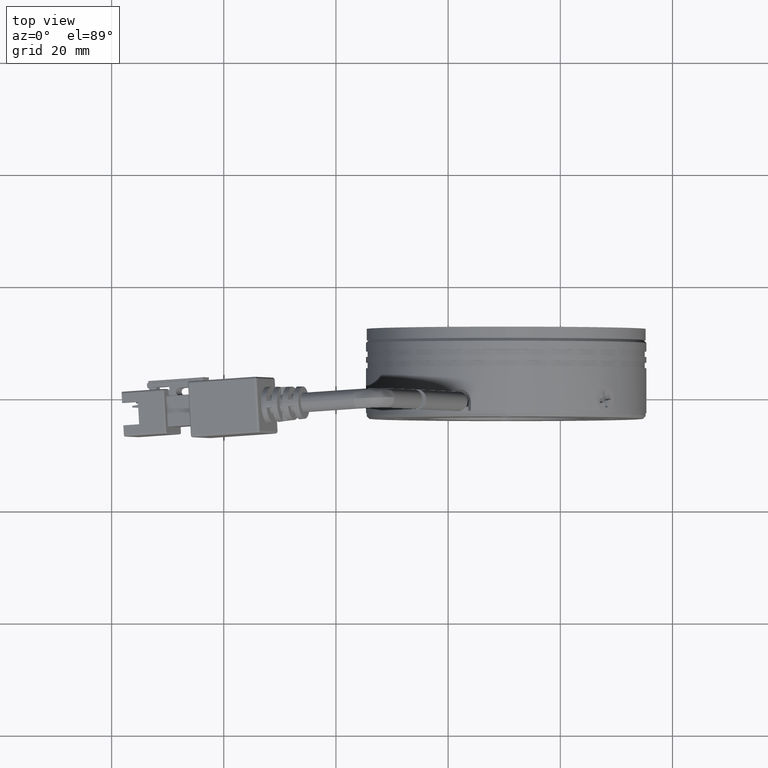
[diagram: clean part render]
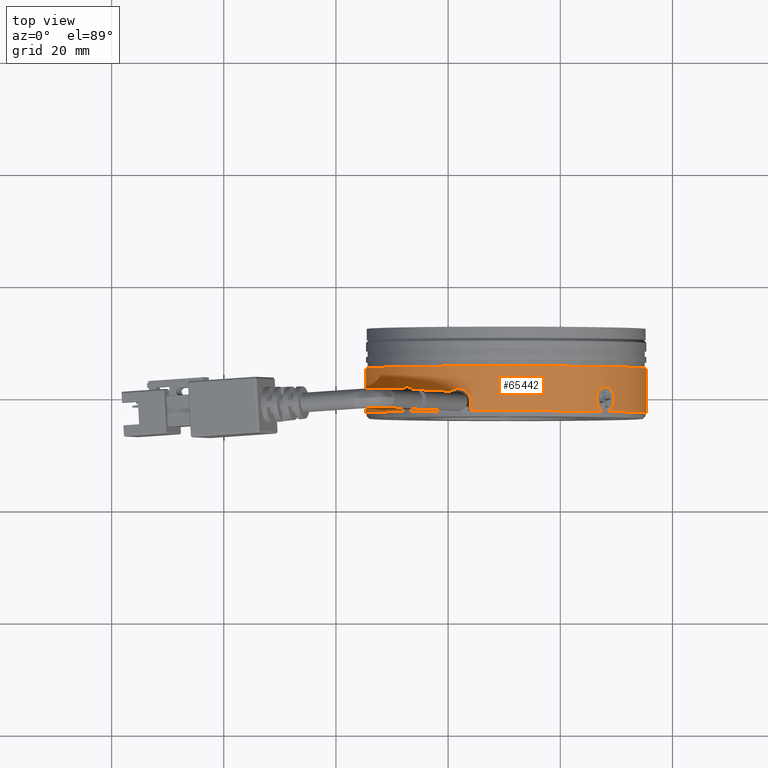
[diagram: same view with one face highlighted and labeled with its STEP entity id]
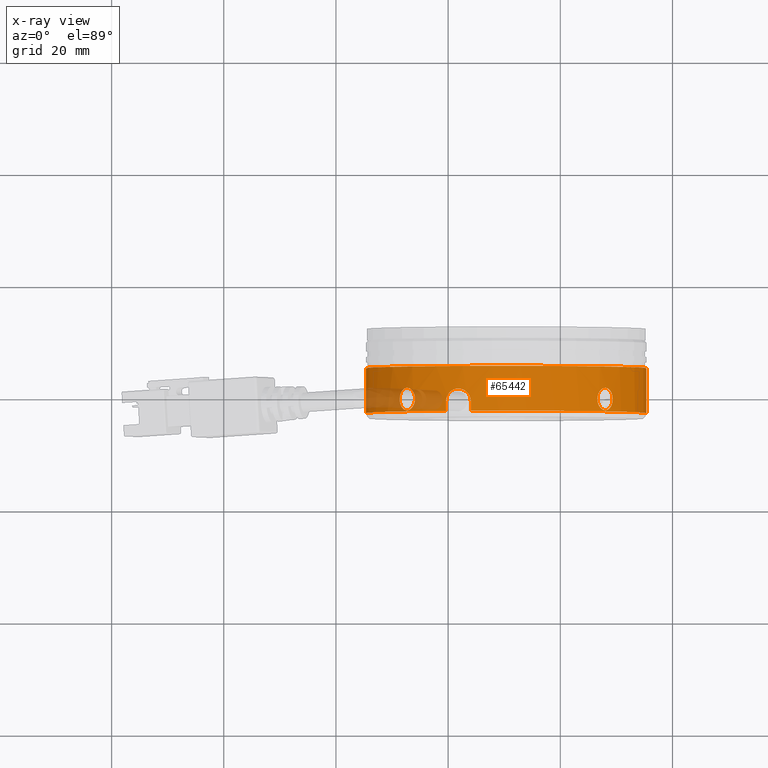
[diagram: x-ray of the same camera — body ghosted, the highlighted face saturated]
A machine part, top view. The second image highlights one B-rep face of the part: STEP entity #65442.
The next image is the same camera in x-ray: the body ghosted, the highlighted face saturated — about 10% of this face is hidden behind the body in this view.
In plain terms, the highlighted cylindrical surface (partial cylindrical patch) has radius 25 mm, axis along (0, 1, 0).
Its self-contained STEP definition (entity closure, byte-faithful):
#42 = CARTESIAN_POINT ( 'NONE',  ( 15.35145858196870000, 51.61934555154557100, 76.55310575562165800 ) ) ;
#93 = DIRECTION ( 'NONE',  ( 4.532197275894738700E-031, 1.000000000000000000, 4.532197275894724700E-031 ) ) ;
#332 = CARTESIAN_POINT ( 'NONE',  ( -28.59642743471406200, -0.1409245902011216900, 92.86194339805426500 ) ) ;
#588 = CARTESIAN_POINT ( 'NONE',  ( -27.14447318840049300, 1.335693571004913600, 94.41110358339697900 ) ) ;
#852 = CARTESIAN_POINT ( 'NONE',  ( -25.91199738532194600, -0.6509794129293314800, 95.53994330166905500 ) ) ;
#977 = CARTESIAN_POINT ( 'NONE',  ( 6.965283324171489100, 0.6568837906994411400, 95.23434073762597100 ) ) ;
#1251 = CARTESIAN_POINT ( 'NONE',  ( 8.848502027718085500, 0.9291898408952834500, 93.37185492042601700 ) ) ;
#2300 = CARTESIAN_POINT ( 'NONE',  ( 6.758631500942608600, -1.524775101214827200, 95.41594956077064200 ) ) ;
#2822 = CARTESIAN_POINT ( 'NONE',  ( 9.338296128016253300, -0.6509794129293314800, 92.81656172291212700 ) ) ;
#3008 = CARTESIAN_POINT ( 'NONE',  ( -28.63537896407886100, -0.6509794129293312600, 92.81656172291214100 ) ) ;
#3081 = CARTESIAN_POINT ( 'NONE',  ( 9.214315766031942800, -1.524736263700865200, 92.96026331398960000 ) ) ;
#4072 = CARTESIAN_POINT ( 'NONE',  ( -25.91199738532195300, -0.7805735488141403200, 95.53994330166906900 ) ) ;
#4314 = CARTESIAN_POINT ( 'NONE',  ( -26.05569897639939100, -1.524736263700857900, 95.41596293968476100 ) ) ;
#4442 = VERTEX_POINT ( 'NONE', #52152 ) ;
#4573 = CARTESIAN_POINT ( 'NONE',  ( -18.75858325760858500, 1.050240870311701900, 99.83462591058243200 ) ) ;
#4577 = CARTESIAN_POINT ( 'NONE',  ( -27.76535396371334500, -2.545989604186977400, 93.78084972891089400 ) ) ;
#4842 = CARTESIAN_POINT ( 'NONE',  ( -16.27051035937246900, 0.003059427249849956700, 100.6603035462586000 ) ) ;
#5021 = CARTESIAN_POINT ( 'NONE',  ( -9.648541418031307200, 5.149020587070663300, 76.55310575562155900 ) ) ;
#5525 = ORIENTED_EDGE ( 'NONE', *, *, #72470, .T. ) ;
#5764 = EDGE_CURVE ( 'NONE', #7518, #4442, #49584, .T. ) ;
#6189 = DIRECTION ( 'NONE',  ( 4.532197275894738700E-031, 1.000000000000000000, 4.532197275894724700E-031 ) ) ;
#6427 = CARTESIAN_POINT ( 'NONE',  ( -28.51139860209456200, 0.2227774378421978600, 92.96026331398960000 ) ) ;
#6539 = CARTESIAN_POINT ( 'NONE',  ( 6.614914549259319500, -0.5213852770445188700, 95.53994330166908400 ) ) ;
#6688 = CARTESIAN_POINT ( 'NONE',  ( -26.87628539132068500, 1.244030778328312000, 94.66991830130353900 ) ) ;
#7094 = CARTESIAN_POINT ( 'NONE',  ( 7.320383586893319400, 1.087999476491328800, 94.91366876036984500 ) ) ;
#7103 = DIRECTION ( 'NONE',  ( -1.000000000000000000, 0.0000000000000000000, -3.885780586188047100E-015 ) ) ;
#7347 = CARTESIAN_POINT ( 'NONE',  ( 9.032626388055046400, 0.6570970333311516600, 93.16700948888886600 ) ) ;
#7518 = VERTEX_POINT ( 'NONE', #3008 ) ;
#7649 = VERTEX_POINT ( 'NONE', #35176 ) ;
#8126 = CARTESIAN_POINT ( 'NONE',  ( 7.940127553003680600, -2.651139287803821400, 94.31979259184363700 ) ) ;
#8397 = CARTESIAN_POINT ( 'NONE',  ( 6.614914549259316900, -0.9101360977703431000, 95.53994330166905500 ) ) ;
#8486 = LINE ( 'NONE', #64119, #40833 ) ;
#8920 = CARTESIAN_POINT ( 'NONE',  ( 9.338296128016248000, -0.7805735488141403200, 92.81656172291215500 ) ) ;
#9166 = CARTESIAN_POINT ( 'NONE',  ( 9.085660720985240200, -1.856027097912917900, 93.10709014022293700 ) ) ;
#9431 = LINE ( 'NONE', #42, #25662 ) ;
#10462 = CARTESIAN_POINT ( 'NONE',  ( -26.20252580263276300, -1.856027097912910500, 95.28730789463804700 ) ) ;
#10479 = CARTESIAN_POINT ( 'NONE',  ( 9.338296128016253300, -0.6509794129293314800, 92.81656172291212700 ) ) ;
#10724 = CARTESIAN_POINT ( 'NONE',  ( -18.34128440230767500, 1.120616904101486600, 99.99364675955716600 ) ) ;
#10726 = CARTESIAN_POINT ( 'NONE',  ( -28.00420989254311300, -2.378719722795056900, 93.52603639698003200 ) ) ;
#10974 = CARTESIAN_POINT ( 'NONE',  ( -16.08118108248113000, -0.4077263361610373200, 100.7114336411842700 ) ) ;
#11148 = CARTESIAN_POINT ( 'NONE',  ( 15.35145858196870000, 5.149020587070663300, 76.55310575562165800 ) ) ;
#11164 = DIRECTION ( 'NONE',  ( -1.000000000000000000, 0.0000000000000000000, -3.885780586188047100E-015 ) ) ;
#12581 = CARTESIAN_POINT ( 'NONE',  ( -28.38274355704784900, 0.5540682720542554600, 93.10709014022293700 ) ) ;
#12825 = CARTESIAN_POINT ( 'NONE',  ( -26.62147205938985600, 1.076760896936394900, 94.90877423013333200 ) ) ;
#13209 = CARTESIAN_POINT ( 'NONE',  ( 7.665160637581143600, 1.282193668190542100, 94.58783949066597100 ) ) ;
#13470 = CARTESIAN_POINT ( 'NONE',  ( 9.175562825433148700, 0.3391833103337365500, 93.00478767127353300 ) ) ;
#14226 = CARTESIAN_POINT ( 'NONE',  ( 7.667421893273191500, -2.584987093674777600, 94.58566324289448300 ) ) ;
#14535 = AXIS2_PLACEMENT_3D ( 'NONE', #36548, #93, #42633 ) ;
#14965 = EDGE_CURVE ( 'NONE', #49677, #15829, #45184, .T. ) ;
#15037 = DIRECTION ( 'NONE',  ( 4.532197275894738700E-031, 1.000000000000000000, 4.532197275894724700E-031 ) ) ;
#15267 = CARTESIAN_POINT ( 'NONE',  ( 8.856913427648793300, -2.237232398198556000, 93.36319180609950800 ) ) ;
#15829 = VERTEX_POINT ( 'NONE', #16133 ) ;
#16133 = CARTESIAN_POINT ( 'NONE',  ( 15.35145858196870000, -2.850979412929329500, 76.55310575562165800 ) ) ;
#16141 = ORIENTED_EDGE ( 'NONE', *, *, #42124, .T. ) ;
#16303 = EDGE_CURVE ( 'NONE', #7649, #49278, #42878, .T. ) ;
#16545 = CARTESIAN_POINT ( 'NONE',  ( -20.29173430067620400, -0.5540434026008559400, 99.17440971861437000 ) ) ;
#16549 = CARTESIAN_POINT ( 'NONE',  ( -26.45862746850934500, -2.237232398198543100, 95.05856060130160800 ) ) ;
#16782 = CARTESIAN_POINT ( 'NONE',  ( -17.91374021181143000, 1.106276856407222500, 100.1477736889933000 ) ) ;
#16787 = CARTESIAN_POINT ( 'NONE',  ( -28.21164930598882500, -2.145817281903581000, 93.29881724834353900 ) ) ;
#17062 = CARTESIAN_POINT ( 'NONE',  ( -15.97689389699466200, -0.8457966733672733800, 100.7389056868494100 ) ) ;
#18162 = VECTOR ( 'NONE', #6189, 1000.000000000000000 ) ;
#18682 = CARTESIAN_POINT ( 'NONE',  ( -28.15399626371139900, 0.9352735723398858400, 93.36319180609952200 ) ) ;
#18956 = CARTESIAN_POINT ( 'NONE',  ( -26.39425291075332000, 0.8438584560449147200, 95.11621364357905900 ) ) ;
#19183 = EDGE_CURVE ( 'NONE', #52139, #58934, #8486, .T. ) ;
#19333 = CARTESIAN_POINT ( 'NONE',  ( 7.936814927013935000, 1.348857779509210000, 94.32307141475591500 ) ) ;
#19589 = CARTESIAN_POINT ( 'NONE',  ( 9.306442487443828100, -0.1345425812952199300, 92.85394572126210700 ) ) ;
#20175 = ORIENTED_EDGE ( 'NONE', *, *, #47386, .T. ) ;
#20362 = CARTESIAN_POINT ( 'NONE',  ( 7.406580212815377700, -2.442249956703199200, 94.83251727190439300 ) ) ;
#21403 = CARTESIAN_POINT ( 'NONE',  ( 8.471533339470154200, -2.544161312705560900, 93.77740728575859900 ) ) ;
#22643 = CARTESIAN_POINT ( 'NONE',  ( -20.14010499316402300, -0.1308073500188194600, 99.24519105075266600 ) ) ;
#22645 = CARTESIAN_POINT ( 'NONE',  ( -26.87284294816844000, -2.544161312705553800, 94.67318051312297200 ) ) ;
#22914 = CARTESIAN_POINT ( 'NONE',  ( -17.49708555863810500, 1.008227231547411900, 100.2895795053371900 ) ) ;
#22918 = CARTESIAN_POINT ( 'NONE',  ( -28.38176321851414500, -1.858048972361420600, 93.10819981746612900 ) ) ;
#22996 = CARTESIAN_POINT ( 'NONE',  ( -34.64854141803131400, 5.149020587070663300, 76.55310575562145900 ) ) ;
#23177 = CARTESIAN_POINT ( 'NONE',  ( -15.96129441888799900, -1.150979412929329800, 100.7429620914945600 ) ) ;
#24547 = CARTESIAN_POINT ( 'NONE',  ( -28.63537896407887100, -0.5213852770445199800, 92.81656172291215500 ) ) ;
#24831 = CARTESIAN_POINT ( 'NONE',  ( -27.76861617553276700, 1.242202486846887900, 93.77740728575861300 ) ) ;
#25089 = CARTESIAN_POINT ( 'NONE',  ( -26.20363547987593100, 0.5560901465027612300, 95.28632755610436800 ) ) ;
#25202 = CARTESIAN_POINT ( 'NONE',  ( 6.660296224401449200, -0.1409245902011164500, 95.50099177230428900 ) ) ;
#25473 = CARTESIAN_POINT ( 'NONE',  ( 8.209456409744200700, 1.335693571004924900, 94.04903752599065600 ) ) ;
#25662 = VECTOR ( 'NONE', #72847, 1000.000000000000000 ) ;
#25738 = CARTESIAN_POINT ( 'NONE',  ( 9.338296128016253300, -0.6509794129293314800, 92.81656172291212700 ) ) ;
#26498 = CARTESIAN_POINT ( 'NONE',  ( 7.170207746773218800, -2.231148666753943300, 95.05014920137088600 ) ) ;
#27581 = CARTESIAN_POINT ( 'NONE',  ( 8.210626502472502300, -2.637474032569500100, 94.04784842168308500 ) ) ;
#27756 = DIRECTION ( 'NONE',  ( 4.532197275894738700E-031, 1.000000000000000000, 4.532197275894724700E-031 ) ) ;
#28026 = CARTESIAN_POINT ( 'NONE',  ( -20.34741389369087700, -0.8486088543798363500, 99.14812900130269200 ) ) ;
#28812 = CARTESIAN_POINT ( 'NONE',  ( -19.91502856178217900, 0.2481173584790368200, 99.34799092269376800 ) ) ;
#28815 = CARTESIAN_POINT ( 'NONE',  ( -27.14328408409292200, -2.637474032569485000, 94.41227367612530900 ) ) ;
#29058 = CARTESIAN_POINT ( 'NONE',  ( -17.09941964930685300, 0.8274441838525955500, 100.4173145155026700 ) ) ;
#29063 = CARTESIAN_POINT ( 'NONE',  ( -28.51138522318043300, -1.524775101214820300, 92.96027867459541500 ) ) ;
#30899 = CARTESIAN_POINT ( 'NONE',  ( -27.50770933853512200, 1.335515206710823800, 94.04784842168309900 ) ) ;
#31163 = CARTESIAN_POINT ( 'NONE',  ( -26.05571433700524200, 0.2228162753561638300, 95.41594956077062800 ) ) ;
#31273 = B_SPLINE_CURVE_WITH_KNOTS ( 'NONE', 3,
 ( #2822, #8920, #33433, #75878, #39463, #3081, #45563, #9166, #51709, #15267, #57857, #21403, #63950, #27581, #70049, #8126, #50691, #14226, #56804, #20362, #62893, #26498, #69011, #32641, #75128, #38672, #2300, #44803, #8397, #50932 ),
 .UNSPECIFIED., .F., .F.,
 ( 4, 2, 2, 2, 2, 2, 2, 2, 2, 2, 2, 2, 2, 2, 4 ),
 ( 0.006161159450372530300, 0.006546184987753589000, 0.006931210525134646900, 0.007316236062515705600, 0.007701261599896763400, 0.008471312674658880800, 0.008856338212039923900, 0.009241363749420968700, 0.009626389286802011800, 0.01001141482418305500, 0.01039644036156409600, 0.01078146589894513900, 0.01116649143632618200, 0.01155151697370722400, 0.01232156804846930800 ),
 .UNSPECIFIED. ) ;
#31291 = CARTESIAN_POINT ( 'NONE',  ( 6.758616140336759100, 0.2227774378422024700, 95.41596293968476100 ) ) ;
#31471 = VECTOR ( 'NONE', #60027, 1000.000000000000000 ) ;
#31486 = AXIS2_PLACEMENT_3D ( 'NONE', #5021, #47516, #11164 ) ;
#31565 = CARTESIAN_POINT ( 'NONE',  ( 8.468271127650732300, 1.244030778328321300, 93.78084972891088000 ) ) ;
#31907 = FACE_BOUND ( 'NONE', #42684, .T. ) ;
#32641 = CARTESIAN_POINT ( 'NONE',  ( 6.965362315236060200, -1.959055859189817700, 95.23427356170788000 ) ) ;
#33405 = LINE ( 'NONE', #35607, #31471 ) ;
#33433 = CARTESIAN_POINT ( 'NONE',  ( 9.330452602917024100, -0.9084886298904379900, 92.82573171768557100 ) ) ;
#34385 = ORIENTED_EDGE ( 'NONE', *, *, #76867, .T. ) ;
#34576 = CIRCLE ( 'NONE', #53888, 25.00000000000000700 ) ;
#34666 = CARTESIAN_POINT ( 'NONE',  ( -25.92116738009537600, -0.9084886298904350000, 95.53209977656985100 ) ) ;
#34914 = CARTESIAN_POINT ( 'NONE',  ( -19.52477020544857200, 0.6754201974384116400, 99.52063821372755100 ) ) ;
#34918 = CARTESIAN_POINT ( 'NONE',  ( -27.41522825425347400, -2.651139287803808900, 94.14177472665650700 ) ) ;
#35176 = CARTESIAN_POINT ( 'NONE',  ( -20.36163199373903500, -2.850979412929330400, 99.14137019352566000 ) ) ;
#35194 = CARTESIAN_POINT ( 'NONE',  ( -16.74339183772451600, 0.5733514810041936400, 100.5254913909871100 ) ) ;
#35196 = CARTESIAN_POINT ( 'NONE',  ( -28.63537896407885700, -0.9101360977703409900, 92.81656172291214100 ) ) ;
#35280 = ORIENTED_EDGE ( 'NONE', *, *, #64260, .T. ) ;
#35607 = CARTESIAN_POINT ( 'NONE',  ( -15.96129441888799500, 51.61934555154557100, 100.7429620914945600 ) ) ;
#36548 = CARTESIAN_POINT ( 'NONE',  ( -9.648541418031307200, -2.850979412929329500, 76.55310575562155900 ) ) ;
#36766 = CARTESIAN_POINT ( 'NONE',  ( -28.62753543897963100, -0.3934701959682242500, 92.82573171768557100 ) ) ;
#37027 = CARTESIAN_POINT ( 'NONE',  ( -27.23721038906630200, 1.349180461945146000, 94.31979259184367900 ) ) ;
#37282 = CARTESIAN_POINT ( 'NONE',  ( -25.91199738532195300, -0.3917595503811764900, 95.53994330166908400 ) ) ;
#37386 = CARTESIAN_POINT ( 'NONE',  ( 6.905442966570133100, 0.5540682720542595700, 95.28730789463807600 ) ) ;
#37627 = EDGE_CURVE ( 'NONE', #15829, #58411, #9431, .T. ) ;
#37647 = CARTESIAN_POINT ( 'NONE',  ( 8.707127056480489500, 1.076760896936402200, 93.52603639698001800 ) ) ;
#38406 = CARTESIAN_POINT ( 'NONE',  ( -20.36163199373904200, -1.150979412929329800, 99.14137019352564600 ) ) ;
#38672 = CARTESIAN_POINT ( 'NONE',  ( 6.803140497620709900, -1.641142136192405000, 95.37720999908594900 ) ) ;
#39297 = EDGE_CURVE ( 'NONE', #49278, #51040, #56655, .T. ) ;
#39463 = CARTESIAN_POINT ( 'NONE',  ( 9.275751928201730200, -1.286434346697240500, 92.88936363915166800 ) ) ;
#40078 = ORIENTED_EDGE ( 'NONE', *, *, #16303, .T. ) ;
#40728 = CARTESIAN_POINT ( 'NONE',  ( -25.98479930156147000, -1.286434346697234100, 95.47739910185455900 ) ) ;
#40833 = VECTOR ( 'NONE', #27756, 1000.000000000000000 ) ;
#41011 = CARTESIAN_POINT ( 'NONE',  ( -18.89546280674352000, 1.007562940229962800, 99.78054675904122900 ) ) ;
#41015 = CARTESIAN_POINT ( 'NONE',  ( -27.68109890530428900, -2.584987093674762500, 93.86906906692604500 ) ) ;
#41262 = CARTESIAN_POINT ( 'NONE',  ( -16.43690133434597600, 0.2488756933359417300, 100.6139791317805500 ) ) ;
#42124 = EDGE_CURVE ( 'NONE', #4442, #7518, #78512, .T. ) ;
#42633 = DIRECTION ( 'NONE',  ( -1.000000000000000000, 0.0000000000000000000, -3.885780586188047100E-015 ) ) ;
#42684 = EDGE_LOOP ( 'NONE', ( #16141, #44808 ) ) ;
#42873 = CARTESIAN_POINT ( 'NONE',  ( -28.57283476426433200, -0.01552447916142583700, 92.88936363915164000 ) ) ;
#42878 = LINE ( 'NONE', #48735, #18162 ) ;
#42881 = CARTESIAN_POINT ( 'NONE',  ( -15.96129441888800200, -2.850979412929329500, 100.7429620914945600 ) ) ;
#43007 = DIRECTION ( 'NONE',  ( 4.532197275894738700E-031, 1.000000000000000000, 4.532197275894724700E-031 ) ) ;
#43131 = CARTESIAN_POINT ( 'NONE',  ( -26.96450472933581500, 1.283028267816100000, 94.58566324289446900 ) ) ;
#43503 = CARTESIAN_POINT ( 'NONE',  ( 7.161544632446725300, 0.9352735723398971600, 95.05856060130160800 ) ) ;
#43599 = EDGE_LOOP ( 'NONE', ( #78622, #48275, #5525, #70160, #20175, #40078, #66420, #57289 ) ) ;
#43774 = CARTESIAN_POINT ( 'NONE',  ( 8.914566469926217700, 0.8438584560449200500, 93.29881724834352500 ) ) ;
#44803 = CARTESIAN_POINT ( 'NONE',  ( 6.652298547609316200, -1.167416244563443500, 95.50808966109661900 ) ) ;
#44808 = ORIENTED_EDGE ( 'NONE', *, *, #5764, .T. ) ;
#45184 = CIRCLE ( 'NONE', #14535, 25.00000000000000700 ) ;
#45563 = CARTESIAN_POINT ( 'NONE',  ( 9.176444922394708200, -1.638712400816162900, 93.00377802376711100 ) ) ;
#46091 = FACE_OUTER_BOUND ( 'NONE', #43599, .T. ) ;
#46540 = CARTESIAN_POINT ( 'NONE',  ( -25.91199738532194600, -0.6509794129293314800, 95.53994330166905500 ) ) ;
#46803 = CARTESIAN_POINT ( 'NONE',  ( -26.09921368617691300, -1.638712400816155800, 95.37809209604753800 ) ) ;
#47005 = CARTESIAN_POINT ( 'NONE',  ( -15.96129441888799900, -1.150979412929329800, 100.7429620914945600 ) ) ;
#47059 = CARTESIAN_POINT ( 'NONE',  ( -18.48142370500507800, 1.106571568070312800, 99.94118463245888500 ) ) ;
#47061 = CARTESIAN_POINT ( 'NONE',  ( -27.92795293431420600, -2.442249956703187200, 93.60822738646820100 ) ) ;
#47327 = CARTESIAN_POINT ( 'NONE',  ( -16.19801587103613400, -0.1301444167394482900, 100.6800210924077300 ) ) ;
#47386 = EDGE_CURVE ( 'NONE', #52139, #7649, #34576, .T. ) ;
#47516 = DIRECTION ( 'NONE',  ( -4.532197275894738700E-031, -1.000000000000000000, -4.532197275894724700E-031 ) ) ;
#48275 = ORIENTED_EDGE ( 'NONE', *, *, #37627, .T. ) ;
#48735 = CARTESIAN_POINT ( 'NONE',  ( -20.36163199373903500, 51.61934555154557100, 99.14137019352566000 ) ) ;
#48963 = CARTESIAN_POINT ( 'NONE',  ( -28.47352775845731900, 0.3367535749575011300, 93.00377802376711100 ) ) ;
#49228 = CARTESIAN_POINT ( 'NONE',  ( -26.70366304887799600, 1.140291130844522000, 94.83251727190443600 ) ) ;
#49278 = VERTEX_POINT ( 'NONE', #38406 ) ;
#49356 = CARTESIAN_POINT ( 'NONE',  ( -9.648541418031307200, 51.61934555154557100, 76.55310575562155900 ) ) ;
#49531 = VERTEX_POINT ( 'NONE', #10479 ) ;
#49584 = B_SPLINE_CURVE_WITH_KNOTS ( 'NONE', 3,
 ( #67077, #24547, #36766, #332, #42873, #6427, #48963, #12581, #55078, #18682, #61186, #24831, #67325, #30899, #73427, #37027, #588, #43131, #6688, #49228, #12825, #55354, #18956, #61442, #25089, #67597, #31163, #73700, #37282, #852 ),
 .UNSPECIFIED., .F., .F.,
 ( 4, 2, 2, 2, 2, 2, 2, 2, 2, 2, 2, 2, 2, 2, 4 ),
 ( 1.517883041479706200E-018, 0.0003850724656482878600, 0.0007701449312965742000, 0.001155217396944860500, 0.001540289862593146200, 0.002310434793889718000, 0.002695507259537993300, 0.003080579725186268600, 0.003465652190834544000, 0.003850724656482819300, 0.004235797122131095500, 0.004620869587779370000, 0.005005942053427645300, 0.005391014519075920700, 0.006161159450372471300 ),
 .UNSPECIFIED. ) ;
#49610 = CARTESIAN_POINT ( 'NONE',  ( 7.575760112105813300, 1.242202486846897700, 94.67318051312297200 ) ) ;
#49677 = VERTEX_POINT ( 'NONE', #42881 ) ;
#49866 = CARTESIAN_POINT ( 'NONE',  ( 9.084680382451530500, 0.5560901465027685600, 93.10819981746610100 ) ) ;
#50107 = B_SPLINE_CURVE_WITH_KNOTS ( 'NONE', 3,
 ( #55471, #6539, #61548, #25202, #67711, #31291, #73811, #37386, #977, #43503, #7094, #49610, #13209, #55741, #19333, #61831, #25473, #67982, #31565, #74096, #37647, #1251, #43774, #7347, #49866, #13470, #56016, #19589, #62100, #25738 ),
 .UNSPECIFIED., .F., .F.,
 ( 4, 2, 2, 2, 2, 2, 2, 2, 2, 2, 2, 2, 2, 2, 4 ),
 ( 1.301042606982605500E-018, 0.0003850724656482840100, 0.0007701449312965667200, 0.001155217396944849200, 0.001540289862593131700, 0.002310434793889676300, 0.002695507259537962500, 0.003080579725186246500, 0.003465652190834531000, 0.003850724656482814500, 0.004235797122131099000, 0.004620869587779383000, 0.005005942053427667900, 0.005391014519075951000, 0.006161159450372530300 ),
 .UNSPECIFIED. ) ;
#50691 = CARTESIAN_POINT ( 'NONE',  ( 7.847390352337877000, -2.637652396863592800, 94.41110358339702200 ) ) ;
#50932 = CARTESIAN_POINT ( 'NONE',  ( 6.614914549259319500, -0.6509794129293312600, 95.53994330166906900 ) ) ;
#51040 = VERTEX_POINT ( 'NONE', #47005 ) ;
#51480 = CARTESIAN_POINT ( 'NONE',  ( -9.648541418031307200, -2.850979412929329500, 76.55310575562155900 ) ) ;
#51709 = CARTESIAN_POINT ( 'NONE',  ( 9.032693563973161600, -1.958842616558102100, 93.16693049782432500 ) ) ;
#52061 = AXIS2_PLACEMENT_3D ( 'NONE', #49356, #43007, #7103 ) ;
#52139 = VERTEX_POINT ( 'NONE', #66315 ) ;
#52152 = CARTESIAN_POINT ( 'NONE',  ( -25.91199738532194600, -0.6509794129293314800, 95.53994330166905500 ) ) ;
#52180 = CARTESIAN_POINT ( 'NONE',  ( -20.36162837692785000, -0.9984542060514467500, 99.14137190889542200 ) ) ;
#52959 = CARTESIAN_POINT ( 'NONE',  ( -20.36163199373904200, -1.150979412929329800, 99.14137019352564600 ) ) ;
#52961 = CARTESIAN_POINT ( 'NONE',  ( -26.26236616023411900, -1.958842616558088100, 95.23434073762595600 ) ) ;
#53238 = CARTESIAN_POINT ( 'NONE',  ( -18.05785979545731800, 1.120686631575712900, 100.0968120818344600 ) ) ;
#53242 = CARTESIAN_POINT ( 'NONE',  ( -28.14558486378069800, -2.231148666753938400, 93.37185492042604600 ) ) ;
#53495 = CARTESIAN_POINT ( 'NONE',  ( -16.03693028449096400, -0.5508563488850991600, 100.7231171561624700 ) ) ;
#53888 = AXIS2_PLACEMENT_3D ( 'NONE', #51480, #15037, #57620 ) ;
#55078 = CARTESIAN_POINT ( 'NONE',  ( -28.32977640003577600, 0.6568837906994320400, 93.16693049782431000 ) ) ;
#55354 = CARTESIAN_POINT ( 'NONE',  ( -26.46729058283585800, 0.9291898408952766800, 95.05014920137088600 ) ) ;
#55471 = CARTESIAN_POINT ( 'NONE',  ( 6.614914549259319500, -0.6509794129293312600, 95.53994330166906900 ) ) ;
#55741 = CARTESIAN_POINT ( 'NONE',  ( 7.846201248030314300, 1.335515206710832500, 94.41227367612532400 ) ) ;
#56016 = CARTESIAN_POINT ( 'NONE',  ( 9.214302387117816900, 0.2228162753561636100, 92.96027867459545700 ) ) ;
#56655 = B_SPLINE_CURVE_WITH_KNOTS ( 'NONE', 3,
 ( #52959, #52180, #28026, #16545, #59106, #22643, #65193, #28812, #71275, #34914, #77351, #41011, #4573, #47059, #10724, #53238, #16782, #59350, #22914, #65475, #29058, #71545, #35194, #77611, #41262, #4842, #47327, #10974, #53495, #17062, #59606, #23177 ),
 .UNSPECIFIED., .F., .F.,
 ( 4, 2, 2, 2, 2, 2, 2, 2, 2, 2, 2, 2, 2, 2, 2, 4 ),
 ( 1.084202172485504400E-018, 0.0004510821266207992400, 0.0009021642532415974000, 0.001353246379862395500, 0.001804328506483193700, 0.002706492759724783500, 0.003157574886345582700, 0.003608657012966381800, 0.004059739139587180100, 0.004510821266207979200, 0.004961903392828778300, 0.005412985519449577500, 0.005864067646070375700, 0.006315149772691174900, 0.006766231899311974000, 0.007217314025932773100 ),
 .UNSPECIFIED. ) ;
#56804 = CARTESIAN_POINT ( 'NONE',  ( 7.579202555258067500, -2.545989604186990300, 94.66991830130352500 ) ) ;
#57289 = ORIENTED_EDGE ( 'NONE', *, *, #60861, .T. ) ;
#57620 = DIRECTION ( 'NONE',  ( -1.000000000000000000, 0.0000000000000000000, -3.885780586188047100E-015 ) ) ;
#57857 = CARTESIAN_POINT ( 'NONE',  ( 8.712021586717044700, -2.389958302349992600, 93.52203076054613000 ) ) ;
#58411 = VERTEX_POINT ( 'NONE', #11148 ) ;
#58934 = VERTEX_POINT ( 'NONE', #22996 ) ;
#59106 = CARTESIAN_POINT ( 'NONE',  ( -20.24952701098587600, -0.4077536559204252300, 99.19427943877072100 ) ) ;
#59109 = CARTESIAN_POINT ( 'NONE',  ( -26.61746642295595300, -2.389958302349986900, 94.91366876036988700 ) ) ;
#59350 = CARTESIAN_POINT ( 'NONE',  ( -17.63405331610663000, 1.049963254703173600, 100.2438943814246700 ) ) ;
#59352 = CARTESIAN_POINT ( 'NONE',  ( -28.32970922411764600, -1.959055859189813300, 93.16700948888882300 ) ) ;
#59606 = CARTESIAN_POINT ( 'NONE',  ( -15.96129805124985300, -0.9984413782804793000, 100.7429611435682100 ) ) ;
#60027 = DIRECTION ( 'NONE',  ( -4.532197275894738700E-031, -1.000000000000000000, -4.532197275894724700E-031 ) ) ;
#60415 = EDGE_LOOP ( 'NONE', ( #34385, #35280 ) ) ;
#60861 = EDGE_CURVE ( 'NONE', #51040, #49677, #33405, .T. ) ;
#61186 = CARTESIAN_POINT ( 'NONE',  ( -28.00910442277966400, 1.087999476491320300, 93.52203076054615800 ) ) ;
#61442 = CARTESIAN_POINT ( 'NONE',  ( -26.26244515129868900, 0.6570970333311468800, 95.23427356170786600 ) ) ;
#61548 = CARTESIAN_POINT ( 'NONE',  ( 6.624084544032749400, -0.3934701959682214700, 95.53209977656985100 ) ) ;
#61831 = CARTESIAN_POINT ( 'NONE',  ( 8.118145418190858100, 1.349180461945157900, 94.14177472665649300 ) ) ;
#62100 = CARTESIAN_POINT ( 'NONE',  ( 9.338296128016246200, -0.3917595503811761600, 92.81656172291214100 ) ) ;
#62304 = FACE_BOUND ( 'NONE', #60415, .T. ) ;
#62893 = CARTESIAN_POINT ( 'NONE',  ( 7.324389223327221600, -2.378719722795063200, 94.90877423013330400 ) ) ;
#63950 = CARTESIAN_POINT ( 'NONE',  ( 8.386192317013144000, -2.584152494049210400, 93.86680781123396900 ) ) ;
#64119 = CARTESIAN_POINT ( 'NONE',  ( -34.64854141803131400, 51.61934555154557100, 76.55310575562145900 ) ) ;
#64260 = EDGE_CURVE ( 'NONE', #69148, #49531, #50107, .T. ) ;
#65193 = CARTESIAN_POINT ( 'NONE',  ( -20.07321139065063800, 0.0003350014737581376200, 99.27608540211112100 ) ) ;
#65197 = CARTESIAN_POINT ( 'NONE',  ( -26.96224347364376000, -2.584152494049194400, 94.58783949066597100 ) ) ;
#65442 = ADVANCED_FACE ( 'NONE', ( #31907, #62304, #46091 ), #70817, .T. ) ;
#65475 = CARTESIAN_POINT ( 'NONE',  ( -17.22918413256211400, 0.8969163423724440000, 100.3764910573083000 ) ) ;
#65479 = CARTESIAN_POINT ( 'NONE',  ( -28.47264566149576500, -1.641142136192389000, 93.00478767127354700 ) ) ;
#66315 = CARTESIAN_POINT ( 'NONE',  ( -34.64854141803131400, -2.850979412929329500, 76.55310575562145900 ) ) ;
#66420 = ORIENTED_EDGE ( 'NONE', *, *, #39297, .T. ) ;
#67077 = CARTESIAN_POINT ( 'NONE',  ( -28.63537896407886100, -0.6509794129293312600, 92.81656172291214100 ) ) ;
#67325 = CARTESIAN_POINT ( 'NONE',  ( -27.68327515307576200, 1.282193668190534600, 93.86680781123399700 ) ) ;
#67597 = CARTESIAN_POINT ( 'NONE',  ( -26.10022333368333100, 0.3391833103337303900, 95.37720999908593500 ) ) ;
#67711 = CARTESIAN_POINT ( 'NONE',  ( 6.687716465498843900, -0.01552447916142308100, 95.47739910185455900 ) ) ;
#67982 = CARTESIAN_POINT ( 'NONE',  ( 8.384016069241676300, 1.283028267816108900, 93.86906906692596000 ) ) ;
#69011 = CARTESIAN_POINT ( 'NONE',  ( 7.097170074690700900, -2.145817281903586800, 95.11621364357904400 ) ) ;
#69148 = VERTEX_POINT ( 'NONE', #69745 ) ;
#69745 = CARTESIAN_POINT ( 'NONE',  ( 6.614914549259319500, -0.6509794129293312600, 95.53994330166906900 ) ) ;
#70049 = CARTESIAN_POINT ( 'NONE',  ( 8.121424241103095900, -2.650816605367872100, 94.13846210066672900 ) ) ;
#70160 = ORIENTED_EDGE ( 'NONE', *, *, #19183, .F. ) ;
#70817 = CYLINDRICAL_SURFACE ( 'NONE', #52061, 25.00000000000000700 ) ;
#71275 = CARTESIAN_POINT ( 'NONE',  ( -19.82377989594526100, 0.3640169970291230500, 99.38896314014886000 ) ) ;
#71278 = CARTESIAN_POINT ( 'NONE',  ( -27.23389776307654500, -2.650816605367860600, 94.32307141475590100 ) ) ;
#71545 = CARTESIAN_POINT ( 'NONE',  ( -16.85720642883751800, 0.6659191778327058200, 100.4915934880256100 ) ) ;
#71548 = CARTESIAN_POINT ( 'NONE',  ( -28.60352532350643900, -1.167416244563437300, 92.85394572126212200 ) ) ;
#72470 = EDGE_CURVE ( 'NONE', #58411, #58934, #77571, .T. ) ;
#72847 = DIRECTION ( 'NONE',  ( 4.532197275894738700E-031, 1.000000000000000000, 4.532197275894724700E-031 ) ) ;
#73427 = CARTESIAN_POINT ( 'NONE',  ( -27.41850707716571700, 1.348857779509197800, 94.13846210066672900 ) ) ;
#73700 = CARTESIAN_POINT ( 'NONE',  ( -25.94938138367194100, -0.1345425812952171200, 95.50808966109661900 ) ) ;
#73811 = CARTESIAN_POINT ( 'NONE',  ( 6.802130850114288300, 0.3367535749575035800, 95.37809209604751000 ) ) ;
#74096 = CARTESIAN_POINT ( 'NONE',  ( 8.630870098251591600, 1.140291130844529800, 93.60822738646815800 ) ) ;
#75128 = CARTESIAN_POINT ( 'NONE',  ( 6.906552643813304500, -1.858048972361437700, 95.28632755610435400 ) ) ;
#75878 = CARTESIAN_POINT ( 'NONE',  ( 9.299344598651449800, -1.161034235657540900, 92.86194339805423700 ) ) ;
#76867 = EDGE_CURVE ( 'NONE', #49531, #69148, #31273, .T. ) ;
#77097 = CARTESIAN_POINT ( 'NONE',  ( -25.95737906046407400, -1.161034235657537800, 95.50099177230423200 ) ) ;
#77351 = CARTESIAN_POINT ( 'NONE',  ( -19.28451156463049900, 0.8414631878568227300, 99.62313744782572700 ) ) ;
#77354 = CARTESIAN_POINT ( 'NONE',  ( -27.50653924580681700, -2.637652396863576300, 94.04903752599069800 ) ) ;
#77571 = CIRCLE ( 'NONE', #31486, 25.00000000000000700 ) ;
#77611 = CARTESIAN_POINT ( 'NONE',  ( -16.53150516933459000, 0.3631205753591954000, 100.5871854244324300 ) ) ;
#77614 = CARTESIAN_POINT ( 'NONE',  ( -28.63537896407886100, -0.6509794129293312600, 92.81656172291214100 ) ) ;
#78512 = B_SPLINE_CURVE_WITH_KNOTS ( 'NONE', 3,
 ( #46540, #4072, #34666, #77097, #40728, #4314, #46803, #10462, #52961, #16549, #59109, #22645, #65197, #28815, #71278, #34918, #77354, #41015, #4577, #47061, #10726, #53242, #16787, #59352, #22918, #65479, #29063, #71548, #35196, #77614 ),
 .UNSPECIFIED., .F., .F.,
 ( 4, 2, 2, 2, 2, 2, 2, 2, 2, 2, 2, 2, 2, 2, 4 ),
 ( 0.006161159450372471300, 0.006546184987753505800, 0.006931210525134539300, 0.007316236062515572800, 0.007701261599896606400, 0.008471312674658679600, 0.008856338212039727800, 0.009241363749420777900, 0.009626389286801827900, 0.01001141482418287800, 0.01039644036156392800, 0.01078146589894497600, 0.01116649143632602600, 0.01155151697370707600, 0.01232156804846918800 ),
 .UNSPECIFIED. ) ;
#78622 = ORIENTED_EDGE ( 'NONE', *, *, #14965, .T. ) ;